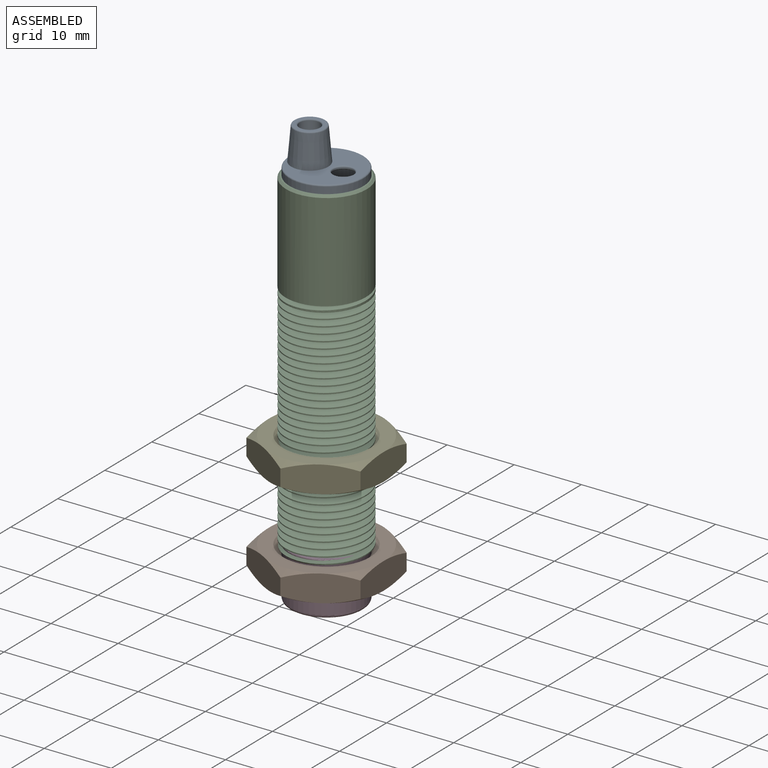
[diagram: assembled view]
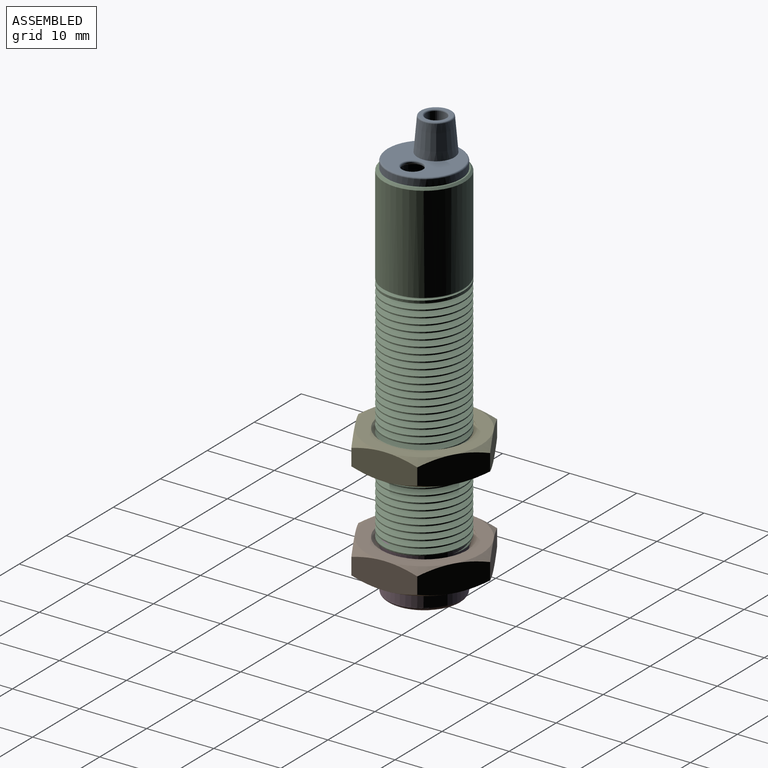
[diagram: assembled view, second angle]
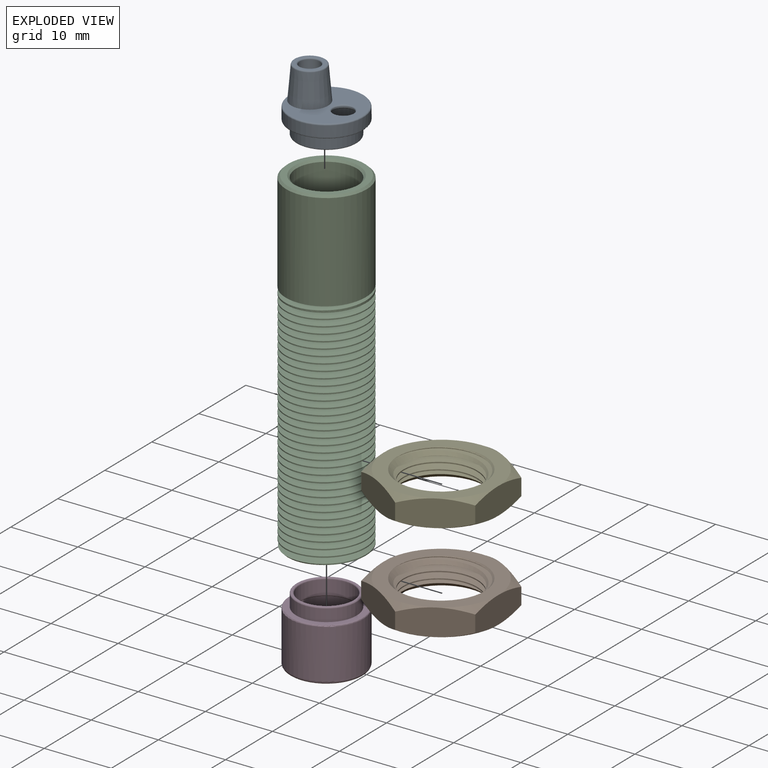
[diagram: exploded view]
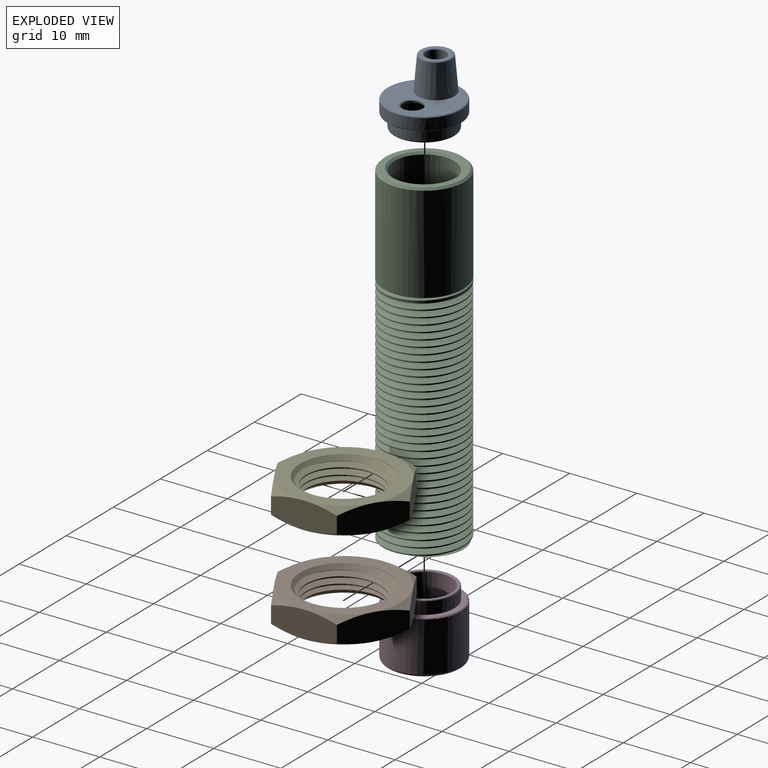
[diagram: exploded view, second angle]
ASSEMBLY  parts=5 mates=2
PART A: 22 faces, bbox 11.9x9x11.9 mm
  f0: plane 10.6x10.6mm, normal (0,1,0), area 55.4mm2, adj f12,f18,f21
  f1: cylinder r=5.5mm len=11mm, axis (0,1,0), area 55.3mm2, adj f16,f21
  f2: plane 10.6x10.6mm, normal (0,-1,0), area 24.6mm2, adj f3,f16
  f3: cylinder r=4.5mm len=9mm, axis (0,1,0), area 50.9mm2, adj f2,f15
  f4: plane 8.6x8.6mm, normal (0,-1,0), area 2.7mm2, adj f14,f15
  f5: cylinder r=4mm len=8mm, axis (0,1,0), area 57.8mm2, adj f6,f14
  f6: plane 10x10mm, normal (0,1,0), area 28.3mm2, adj f5,f7
  f7: cylinder r=5mm len=10mm, axis (0,1,0), area 31.4mm2, adj f6,f8
  f8: plane 10x10mm, normal (0,-1,0), area 60.4mm2, adj f7,f13,f17
  f9: cylinder r=1.5mm len=3mm, axis (0,1,0), area 0.9mm2, adj f17,f18
  f10: cylinder r=1.5mm len=5.1mm, axis (0,1,0), area 48.1mm2, adj f13,f20
  f11: plane 4.26x4.26mm, normal (0,1,0), area 5.2mm2, adj f19,f20
  f12: cone r=2.75mm half-angle=5deg, axis (0,-1,0), area 77.2mm2, adj f0,f19
  f13: torus R=1.7mm, axis (0,-1,0), area 3.1mm2, adj f8,f10
  f14: torus R=4.2mm, axis (0,-1,0), area 8mm2, adj f4,f5
  f15: torus R=4.3mm, axis (0,-1,0), area 8.7mm2, adj f3,f4
  f16: torus R=5.3mm, axis (0,-1,0), area 10.7mm2, adj f1,f2
  f17: torus R=1.7mm, axis (0,-1,0), area 3.1mm2, adj f8,f9
  f18: torus R=1.7mm, axis (0,1,0), area 3.1mm2, adj f0,f9
  f19: torus R=2.13mm, axis (0,1,0), area 4.2mm2, adj f11,f12
  f20: torus R=1.7mm, axis (0,1,0), area 3.1mm2, adj f10,f11
  f21: torus R=5.3mm, axis (0,1,0), area 10.7mm2, adj f0,f1
PART B: 28 faces, bbox 20.4x20.4x5.4 mm
  f0: cylinder r=5.5mm len=11mm, axis (0,0,-1), area 11.5mm2, adj f1,f2,f4,f25,f27
  f1: cone r=5.5mm half-angle=45deg, axis (0,0,1), area 29.2mm2, adj f0,f2,f5,f25,f26,f27
  f2: cone r=5.5mm half-angle=45deg, axis (0,0,1), area 0.2mm2, adj f0,f1,f25
  f3: cone r=6.5mm half-angle=45deg, axis (0,0,-1), area 18.6mm2, adj f4,f12,f25,f26
  f4: cone r=6.5mm half-angle=45deg, axis (0,0,-1), area 10.7mm2, adj f0,f3,f25,f27
  f5: plane 17x17mm, normal (0,0,1), area 94.2mm2, adj f1,f13,f14,f15,f16,f17,f18
  f6: plane 9.31x5.71mm, normal (-0.5,-0.87,0), area 34.1mm2, adj f7,f11,f13,f18,f22,f23
  f7: plane 9.31x5.71mm, normal (0.5,-0.87,0), area 34.1mm2, adj f6,f8,f17,f18,f23,f24
  f8: plane 10.63x4.81mm, normal (1,0,0), area 34.1mm2, adj f7,f9,f16,f17,f19,f24
  f9: plane 9.31x5.71mm, normal (0.5,0.87,0), area 34.1mm2, adj f8,f10,f15,f16,f19,f20
  f10: plane 9.31x5.71mm, normal (-0.5,0.87,0), area 34.1mm2, adj f9,f11,f14,f15,f20,f21
  f11: plane 10.63x4.81mm, normal (-1,0,0), area 34.1mm2, adj f6,f10,f13,f14,f21,f22
  f12: plane 17x17mm, normal (0,0,-1), area 94.2mm2, adj f3,f19,f20,f21,f22,f23,f24
  f13: cone r=8.5mm half-angle=60deg, axis (0,0,-1), area 7.1mm2, adj f5,f6,f11
  f14: cone r=8.5mm half-angle=60deg, axis (0,0,-1), area 7.1mm2, adj f5,f10,f11
  f15: cone r=8.5mm half-angle=60deg, axis (0,0,-1), area 7.1mm2, adj f5,f9,f10
  f16: cone r=8.5mm half-angle=60deg, axis (0,0,-1), area 7.1mm2, adj f5,f8,f9
  f17: cone r=8.5mm half-angle=60deg, axis (0,0,-1), area 7.1mm2, adj f5,f7,f8
  f18: cone r=8.5mm half-angle=60deg, axis (0,0,-1), area 7.1mm2, adj f5,f6,f7
  f19: cone r=8.5mm half-angle=60deg, axis (0,0,1), area 7.1mm2, adj f8,f9,f12
  f20: cone r=8.5mm half-angle=60deg, axis (0,0,1), area 7.1mm2, adj f9,f10,f12
  f21: cone r=8.5mm half-angle=60deg, axis (0,0,1), area 7.1mm2, adj f10,f11,f12
  f22: cone r=8.5mm half-angle=60deg, axis (0,0,1), area 7.1mm2, adj f6,f11,f12
  f23: cone r=8.5mm half-angle=60deg, axis (0,0,1), area 7.1mm2, adj f6,f7,f12
  f24: cone r=8.5mm half-angle=60deg, axis (0,0,1), area 7.1mm2, adj f7,f8,f12
  f25: bspline ~12.85x12.85mm, area 108.9mm2, adj f0,f1,f2,f3,f4,f26
  f26: bspline ~12.95x12.95mm, area 27.3mm2, adj f1,f3,f25,f27
  f27: bspline ~12.85x12.85mm, area 103.1mm2, adj f0,f1,f4,f26
PART C: 48 faces, bbox 13.5x13.3x50.6 mm
  f0: cylinder r=6mm len=15.76mm, axis (0,0,-1), area 558.1mm2, adj f1,f40,f44,f45,f46,f47
  f1: cylinder r=6mm len=12mm, axis (0,0,-1), area 6.3mm2, adj f0,f2,f43,f44
  f2: cylinder r=6mm len=12mm, axis (0,0,-1), area 6.3mm2, adj f1,f3,f43,f44
  f3: cylinder r=6mm len=12mm, axis (0,0,-1), area 6.3mm2, adj f2,f4,f43,f44
  f4: cylinder r=6mm len=12mm, axis (0,0,-1), area 6.3mm2, adj f3,f5,f43,f44
  f5: cylinder r=6mm len=12mm, axis (0,0,-1), area 6.3mm2, adj f4,f6,f43,f44
  f6: cylinder r=6mm len=12mm, axis (0,0,-1), area 6.3mm2, adj f5,f7,f43,f44
  f7: cylinder r=6mm len=12mm, axis (0,0,-1), area 6.3mm2, adj f6,f8,f43,f44
  f8: cylinder r=6mm len=12mm, axis (0,0,-1), area 6.3mm2, adj f7,f9,f43,f44
  f9: cylinder r=6mm len=12mm, axis (0,0,-1), area 6.3mm2, adj f8,f10,f43,f44
  f10: cylinder r=6mm len=12mm, axis (0,0,-1), area 6.3mm2, adj f9,f11,f43,f44
  f11: cylinder r=6mm len=12mm, axis (0,0,-1), area 6.3mm2, adj f10,f12,f43,f44
  f12: cylinder r=6mm len=12mm, axis (0,0,-1), area 6.3mm2, adj f11,f13,f43,f44
  f13: cylinder r=6mm len=12mm, axis (0,0,-1), area 6.3mm2, adj f12,f14,f43,f44
  f14: cylinder r=6mm len=12mm, axis (0,0,-1), area 6.3mm2, adj f13,f15,f43,f44
  f15: cylinder r=6mm len=12mm, axis (0,0,-1), area 6.3mm2, adj f14,f16,f43,f44
  f16: cylinder r=6mm len=12mm, axis (0,0,-1), area 6.3mm2, adj f15,f17,f43,f44
  f17: cylinder r=6mm len=12mm, axis (0,0,-1), area 6.3mm2, adj f16,f18,f43,f44
  f18: cylinder r=6mm len=12mm, axis (0,0,-1), area 6.3mm2, adj f17,f19,f43,f44
  f19: cylinder r=6mm len=12mm, axis (0,0,-1), area 6.3mm2, adj f18,f20,f43,f44
  f20: cylinder r=6mm len=12mm, axis (0,0,-1), area 6.3mm2, adj f19,f21,f43,f44
  f21: cylinder r=6mm len=12mm, axis (0,0,-1), area 6.3mm2, adj f20,f22,f43,f44
  f22: cylinder r=6mm len=12mm, axis (0,0,-1), area 6.3mm2, adj f21,f23,f43,f44
  f23: cylinder r=6mm len=12mm, axis (0,0,-1), area 6.3mm2, adj f22,f24,f43,f44
  f24: cylinder r=6mm len=12mm, axis (0,0,-1), area 6.3mm2, adj f23,f25,f43,f44
  f25: cylinder r=6mm len=12mm, axis (0,0,-1), area 6.3mm2, adj f24,f26,f43,f44
  f26: cylinder r=6mm len=12mm, axis (0,0,-1), area 6.3mm2, adj f25,f27,f43,f44
  f27: cylinder r=6mm len=12mm, axis (0,0,-1), area 6.3mm2, adj f26,f28,f43,f44
  f28: cylinder r=6mm len=12mm, axis (0,0,-1), area 6.3mm2, adj f27,f29,f43,f44
  f29: cylinder r=6mm len=12mm, axis (0,0,-1), area 6.3mm2, adj f28,f30,f43,f44
  f30: cylinder r=6mm len=12mm, axis (0,0,-1), area 6.3mm2, adj f29,f31,f43,f44
  f31: cylinder r=6mm len=12mm, axis (0,0,-1), area 6.3mm2, adj f30,f32,f43,f44
  f32: cylinder r=6mm len=12mm, axis (0,0,-1), area 6.3mm2, adj f31,f33,f43,f44
  f33: cylinder r=6mm len=12mm, axis (0,0,-1), area 6.3mm2, adj f32,f34,f43,f44
  f34: cylinder r=6mm len=12mm, axis (0,0,-1), area 4.5mm2, adj f33,f36,f43,f44
  f35: plane 11.38x10.99mm, normal (0,0,-1), area 21.4mm2, adj f36,f39,f42,f43,f44
  f36: cone r=6mm half-angle=45deg, axis (0,0,1), area 4.3mm2, adj f34,f35,f43,f44
  f37: plane 11.4x11.4mm, normal (0,0,1), area 29.7mm2, adj f40,f41
  f38: cylinder r=4.5mm len=49.4mm, axis (0,0,-1), area 1396.8mm2, adj f39,f41
  f39: cone r=4.8mm half-angle=45deg, axis (0,0,-1), area 12.4mm2, adj f35,f38
  f40: cone r=5.7mm half-angle=45deg, axis (0,0,-1), area 15.6mm2, adj f0,f37
  f41: cone r=4.5mm half-angle=45deg, axis (0,0,1), area 12.4mm2, adj f37,f38
  f42: bspline ~34.78x10.15mm, area 189.6mm2, adj f35,f43,f44,f47
  f43: bspline ~34.84x12mm, area 1173.6mm2, adj f1,f2,f3,f4,f5,f6,f7,f8
  f44: bspline ~35.22x12mm, area 1193.6mm2, adj f0,f1,f2,f3,f4,f5,f6,f7
  f45: bspline ~13.3x13.04mm, area 16.3mm2, adj f0,f44,f47
  f46: bspline ~13.3x13.04mm, area 16.3mm2, adj f0,f43,f47
  f47: bspline ~11.67x11.19mm, area 5.7mm2, adj f0,f42,f45,f46
PART D: 15 faces, bbox 11.9x10x11.9 mm
  f0: plane 9.6x9.6mm, normal (0,-1,0), area 72.4mm2, adj f10
  f1: cylinder r=5mm len=10mm, axis (0,1,0), area 213.6mm2, adj f2,f10
  f2: plane 10x10mm, normal (0,1,0), area 23.1mm2, adj f1,f11
  f3: cylinder r=4mm len=8mm, axis (0,1,0), area 52.8mm2, adj f11,f12
  f4: plane 8.6x8.6mm, normal (0,-1,0), area 2.7mm2, adj f12,f13
  f5: cylinder r=4.5mm len=9mm, axis (0,1,0), area 50.9mm2, adj f6,f13
  f6: plane 10.6x10.6mm, normal (0,-1,0), area 24.6mm2, adj f5,f14
  f7: cylinder r=5.5mm len=11mm, axis (0,1,0), area 252.3mm2, adj f9,f14
  f8: plane 10x10mm, normal (0,1,0), area 78.5mm2, adj f9
  f9: torus R=5mm, axis (0,1,0), area 26.2mm2, adj f7,f8
  f10: torus R=4.8mm, axis (0,-1,0), area 9.7mm2, adj f0,f1
  f11: torus R=4.2mm, axis (0,1,0), area 8mm2, adj f2,f3
  f12: torus R=4.2mm, axis (0,-1,0), area 8mm2, adj f3,f4
  f13: torus R=4.3mm, axis (0,-1,0), area 8.7mm2, adj f4,f5
  f14: torus R=5.3mm, axis (0,-1,0), area 10.7mm2, adj f6,f7
PART E: same geometry as B
PLACE A rot(axis=(1,0,0),90deg) t=(15.84,27.44,8.89)mm
PLACE B t=(15.84,27.44,-46.01)mm
PLACE C t=(15.84,27.44,-42.31)mm fixed
PLACE D rot(axis=(-1,0,0),90deg) t=(15.84,27.44,-49.51)mm
PLACE E t=(15.84,27.44,-31.33)mm
MATE fastened C.f0 <-> A.f1  axis (0,0,-1) through (15.84,27.44,7.39)mm
MATE fastened C.f0 <-> D.f14  axis (0,0,-1) through (15.84,27.44,-42.01)mm
